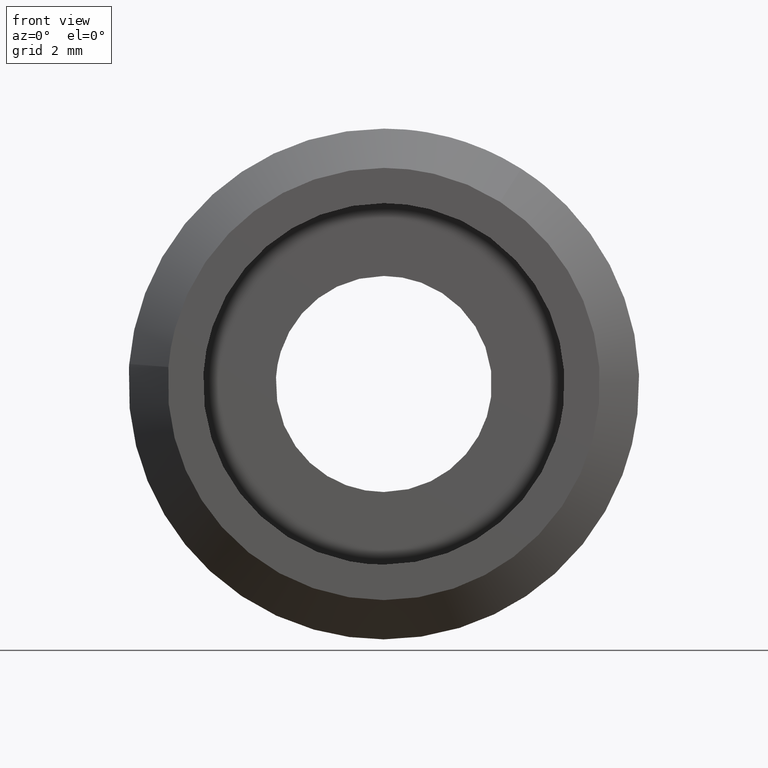
[diagram: clean part render]
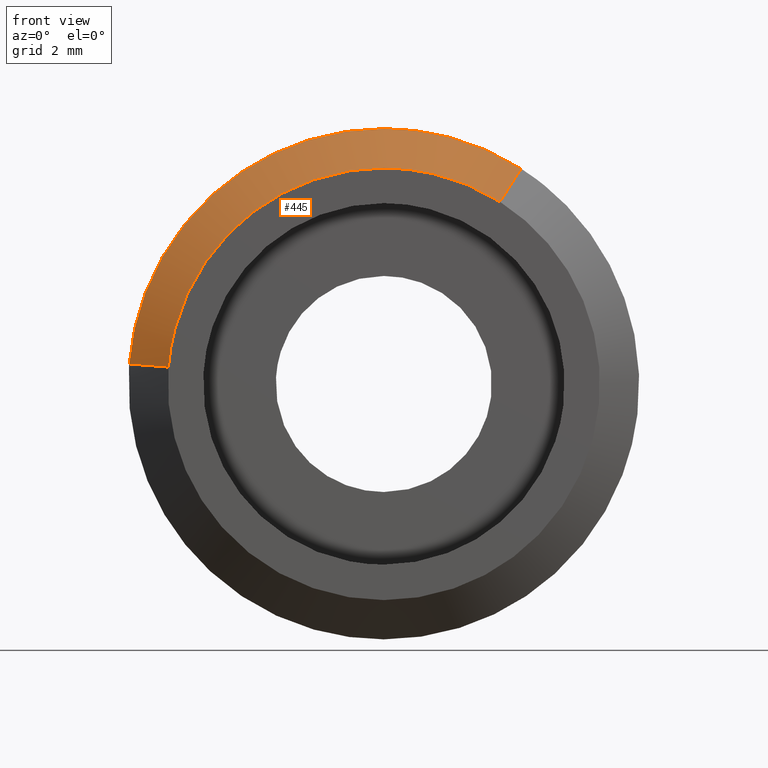
[diagram: same view with one face highlighted and labeled with its STEP entity id]
A machine part, front view. The second image highlights one B-rep face of the part: STEP entity #445.
In plain terms, the highlighted face is a freeform B-spline surface patch.
Its self-contained STEP definition (entity closure, byte-faithful):
#254=CARTESIAN_POINT('',(3.496030157401222,-0.999999999999946,5.479760317618087));
#255=VERTEX_POINT('',#254);
#271=CARTESIAN_POINT('',(2.958179363957607,-1.999999999999788,4.636720268752224));
#272=VERTEX_POINT('',#271);
#273=CARTESIAN_POINT('',(2.958179363957607,-1.999999999999788,4.636720268752224));
#274=CARTESIAN_POINT('',(3.496030157401222,-0.999999999999946,5.479760317618087));
#275=QUASI_UNIFORM_CURVE('',1,(#273,#274),.UNSPECIFIED.,.F.,.U.);
#276=EDGE_CURVE('',#272,#255,#275,.T.);
#295=CARTESIAN_POINT('',(-5.483045335532477,-1.999999999999305,0.431525026508502));
#296=VERTEX_POINT('',#295);
#312=CARTESIAN_POINT('',(-6.479962669265479,-0.999999999999622,0.509984122233905));
#313=VERTEX_POINT('',#312);
#314=CARTESIAN_POINT('',(-5.483045335532477,-1.999999999999305,0.431525026508502));
#315=CARTESIAN_POINT('',(-6.479962669265479,-0.999999999999622,0.509984122233905));
#316=QUASI_UNIFORM_CURVE('',1,(#314,#315),.UNSPECIFIED.,.F.,.U.);
#317=EDGE_CURVE('',#296,#313,#316,.T.);
#367=CARTESIAN_POINT('',(-5.458122402188872,-2.025000000000000,0.429563549109954));
#368=CARTESIAN_POINT('',(-5.028558853078918,-2.025000000000000,5.887685951298828));
#369=CARTESIAN_POINT('',(0.429563549109955,-2.025000000000000,5.458122402188873));
#370=CARTESIAN_POINT('',(1.792321263180675,-2.024999999999999,5.350871044103091));
#371=CARTESIAN_POINT('',(2.944733094117965,-2.025000000000000,4.615644267532583));
#372=CARTESIAN_POINT('',(-6.505508675942239,-0.974375000000000,0.511994636559022));
#373=CARTESIAN_POINT('',(-5.993514039383216,-0.974375000000000,7.017503312501262));
#374=CARTESIAN_POINT('',(0.511994636559022,-0.974375000000000,6.505508675942240));
#375=CARTESIAN_POINT('',(2.136258711058153,-0.974375000000000,6.377676320945247));
#376=CARTESIAN_POINT('',(3.509812583982383,-0.974375000000000,5.501363218870742));
#384=(BOUNDED_SURFACE()B_SPLINE_SURFACE(2,1,((#367,#372),(#368,#373),(#369,#374),(#370,#375),(#371,#376)),.UNSPECIFIED.,.F.,.F.,.U.)B_SPLINE_SURFACE_WITH_KNOTS((3,2,3),(2,2),(0.0,10.812009511843710,14.271852555633700),(0.0,1.0),.UNSPECIFIED.)GEOMETRIC_REPRESENTATION_ITEM()RATIONAL_B_SPLINE_SURFACE(((1.0,1.0),(0.707106781186548,0.707106781186548),(1.0,1.0),(0.906274169979695,0.906274169979695),(0.872532871172386,0.872532871172386)))REPRESENTATION_ITEM('')SURFACE());
#385=CARTESIAN_POINT('',(4.898425E-016,-1.0,6.500000000000000));
#386=VERTEX_POINT('',#385);
#387=CARTESIAN_POINT('',(3.496030157401223,-0.999999999999946,5.479760317618088));
#388=CARTESIAN_POINT('',(1.896882359966342,-1.0,6.500000000000000));
#389=CARTESIAN_POINT('',(4.898425E-016,-1.0,6.500000000000000));
#397=(BOUNDED_CURVE()B_SPLINE_CURVE(2,(#387,#388,#389),.UNSPECIFIED.,.F.,.U.)B_SPLINE_CURVE_WITH_KNOTS((3,3),(0.407950112627522,0.500000000000000),.UNSPECIFIED.)CURVE()GEOMETRIC_REPRESENTATION_ITEM()RATIONAL_B_SPLINE_CURVE((0.863729296954906,0.892156848784236,1.0))REPRESENTATION_ITEM(''));
#398=EDGE_CURVE('',#255,#386,#397,.T.);
#399=ORIENTED_EDGE('',*,*,#398,.T.);
#400=CARTESIAN_POINT('',(4.898425E-016,-1.0,6.500000000000000));
#401=CARTESIAN_POINT('',(-6.008538195773006,-1.0,6.500000000000000));
#402=CARTESIAN_POINT('',(-6.479962669265479,-0.999999999999622,0.509984122233905));
#410=(BOUNDED_CURVE()B_SPLINE_CURVE(2,(#400,#401,#402),.UNSPECIFIED.,.F.,.U.)B_SPLINE_CURVE_WITH_KNOTS((3,3),(0.500000000000000,0.736331300632615),.UNSPECIFIED.)CURVE()GEOMETRIC_REPRESENTATION_ITEM()RATIONAL_B_SPLINE_CURVE((1.0,0.723120658605375,0.969723356171499))REPRESENTATION_ITEM(''));
#411=EDGE_CURVE('',#386,#313,#410,.T.);
#412=ORIENTED_EDGE('',*,*,#411,.T.);
#413=ORIENTED_EDGE('',*,*,#317,.F.);
#414=CARTESIAN_POINT('',(4.898425E-016,-2.0,5.500000000000000));
#415=VERTEX_POINT('',#414);
#416=CARTESIAN_POINT('',(4.898425E-016,-2.0,5.500000000000000));
#417=CARTESIAN_POINT('',(-5.084147704110269,-2.000000000000000,5.499999999999999));
#418=CARTESIAN_POINT('',(-5.483045335532477,-1.999999999999304,0.431525026508502));
#426=(BOUNDED_CURVE()B_SPLINE_CURVE(2,(#416,#417,#418),.UNSPECIFIED.,.F.,.U.)B_SPLINE_CURVE_WITH_KNOTS((3,3),(0.500000000000000,0.736331300632435),.UNSPECIFIED.)CURVE()GEOMETRIC_REPRESENTATION_ITEM()RATIONAL_B_SPLINE_CURVE((1.0,0.723120658605585,0.969723356171123))REPRESENTATION_ITEM(''));
#427=EDGE_CURVE('',#415,#296,#426,.T.);
#428=ORIENTED_EDGE('',*,*,#427,.F.);
#429=CARTESIAN_POINT('',(2.958179363957608,-1.999999999999788,4.636720268752226));
#430=CARTESIAN_POINT('',(1.605054304590299,-2.0,5.500000000000001));
#431=CARTESIAN_POINT('',(4.898425E-016,-2.0,5.500000000000000));
#439=(BOUNDED_CURVE()B_SPLINE_CURVE(2,(#429,#430,#431),.UNSPECIFIED.,.F.,.U.)B_SPLINE_CURVE_WITH_KNOTS((3,3),(0.407950112627348,0.500000000000000),.UNSPECIFIED.)CURVE()GEOMETRIC_REPRESENTATION_ITEM()RATIONAL_B_SPLINE_CURVE((0.863729296954799,0.892156848784032,1.0))REPRESENTATION_ITEM(''));
#440=EDGE_CURVE('',#272,#415,#439,.T.);
#441=ORIENTED_EDGE('',*,*,#440,.F.);
#442=ORIENTED_EDGE('',*,*,#276,.T.);
#443=EDGE_LOOP('',(#399,#412,#413,#428,#441,#442));
#444=FACE_OUTER_BOUND('',#443,.T.);
#445=ADVANCED_FACE('',(#444),#384,.T.);